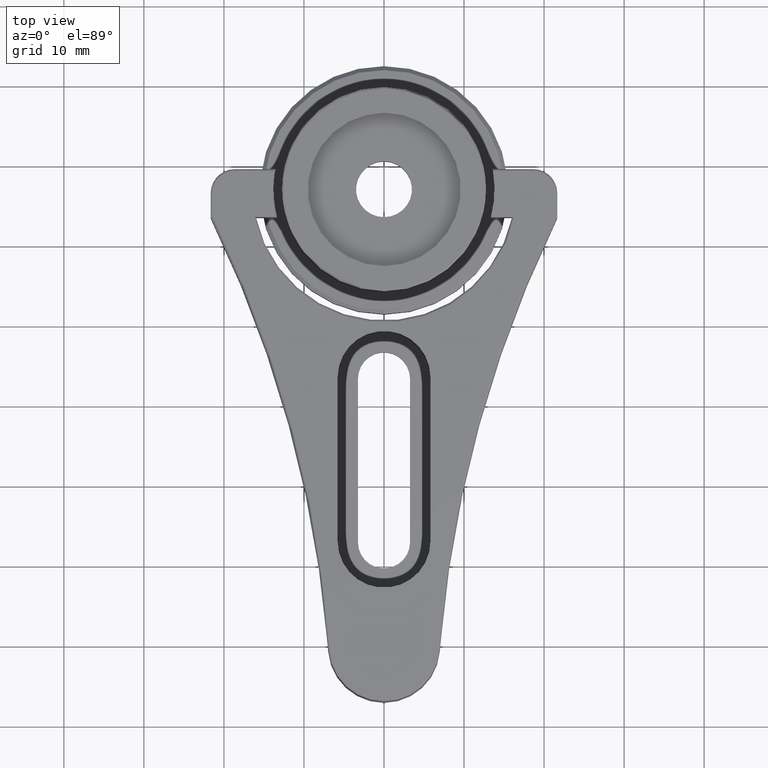
[diagram: clean part render]
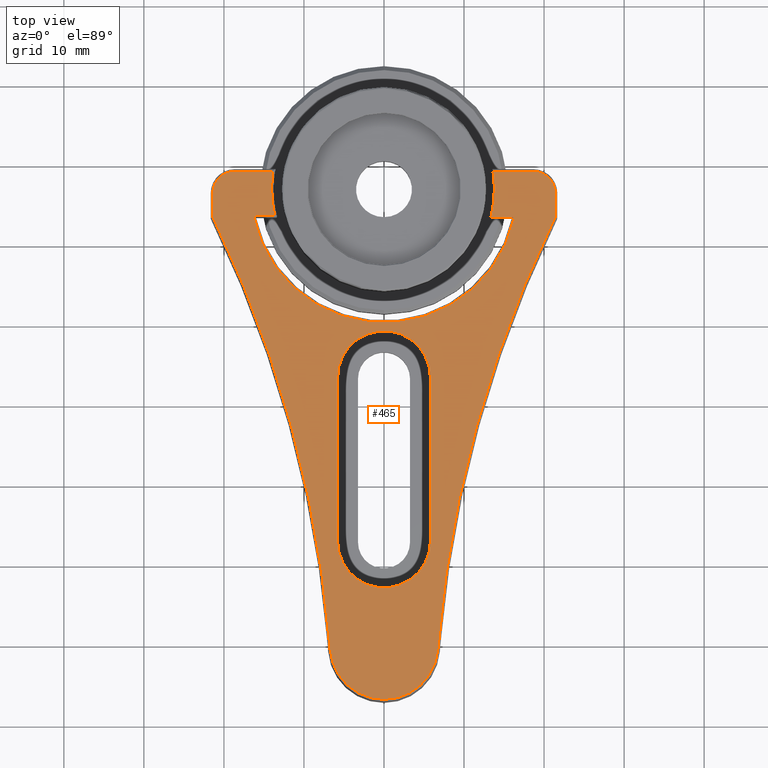
[diagram: same view with one face highlighted and labeled with its STEP entity id]
A machine part, top view. The second image highlights one B-rep face of the part: STEP entity #465.
In plain terms, the highlighted planar face has unit normal (-0, 0, 1).
Its self-contained STEP definition (entity closure, byte-faithful):
#7 = CARTESIAN_POINT ( 'NONE',  ( -9.214018816591089200E-012, -5.370703881625333900E-015, 10.80000000000000100 ) ) ;
#15 = DIRECTION ( 'NONE',  ( 2.834792021718399100E-015, -1.000000000000000000, 0.0000000000000000000 ) ) ;
#16 = ORIENTED_EDGE ( 'NONE', *, *, #103, .T. ) ;
#35 = DIRECTION ( 'NONE',  ( 1.156482317317913300E-015, 1.000000000000000000, -0.0000000000000000000 ) ) ;
#46 = LINE ( 'NONE', #417, #1243 ) ;
#103 = EDGE_CURVE ( 'NONE', #2267, #194, #1015, .T. ) ;
#115 = EDGE_CURVE ( 'NONE', #576, #670, #1363, .T. ) ;
#165 = DIRECTION ( 'NONE',  ( 1.000000000000000000, 0.0000000000000000000, 0.0000000000000000000 ) ) ;
#179 = CARTESIAN_POINT ( 'NONE',  ( 0.0000000000000000000, 13.00000000000078900, 10.80000000000000100 ) ) ;
#194 = VERTEX_POINT ( 'NONE', #1903 ) ;
#210 = EDGE_CURVE ( 'NONE', #2648, #1489, #2066, .T. ) ;
#211 = CARTESIAN_POINT ( 'NONE',  ( 5.800000000000011400, 13.00000000000078900, 10.80000000000000100 ) ) ;
#231 = DIRECTION ( 'NONE',  ( -0.0000000000000000000, 0.0000000000000000000, 1.000000000000000000 ) ) ;
#233 = ORIENTED_EDGE ( 'NONE', *, *, #210, .T. ) ;
#235 = VERTEX_POINT ( 'NONE', #677 ) ;
#250 = CARTESIAN_POINT ( 'NONE',  ( 5.800000000000011400, 33.49999999999933200, 10.80000000000000100 ) ) ;
#263 = VERTEX_POINT ( 'NONE', #433 ) ;
#268 = FACE_BOUND ( 'NONE', #738, .T. ) ;
#273 = EDGE_CURVE ( 'NONE', #194, #916, #1125, .T. ) ;
#302 = CARTESIAN_POINT ( 'NONE',  ( 6.729826611543264100, -0.5214727015295810300, 10.80000000000000100 ) ) ;
#339 = EDGE_CURVE ( 'NONE', #2555, #2648, #2131, .T. ) ;
#378 = CARTESIAN_POINT ( 'NONE',  ( 18.64999999999077900, 56.49999999999924700, 10.80000000000000100 ) ) ;
#381 = ORIENTED_EDGE ( 'NONE', *, *, #582, .F. ) ;
#395 = DIRECTION ( 'NONE',  ( -0.0000000000000000000, 0.0000000000000000000, 1.000000000000000000 ) ) ;
#417 = CARTESIAN_POINT ( 'NONE',  ( -18.65000000000922100, 59.24999999999925400, 10.80000000000000100 ) ) ;
#430 = DIRECTION ( 'NONE',  ( -1.000000000000000000, 2.732741864993315900E-015, -0.0000000000000000000 ) ) ;
#433 = CARTESIAN_POINT ( 'NONE',  ( 13.34878271602879000, 53.49999999999934600, 10.80000000000000100 ) ) ;
#449 = AXIS2_PLACEMENT_3D ( 'NONE', #2124, #618, #2545 ) ;
#452 = DIRECTION ( 'NONE',  ( 0.0000000000000000000, -0.0000000000000000000, -1.000000000000000000 ) ) ;
#465 = ADVANCED_FACE ( 'NONE', ( #268, #1191 ), #2336, .T. ) ;
#486 = ORIENTED_EDGE ( 'NONE', *, *, #655, .T. ) ;
#497 = LINE ( 'NONE', #2060, #717 ) ;
#526 = ORIENTED_EDGE ( 'NONE', *, *, #2709, .T. ) ;
#543 = ORIENTED_EDGE ( 'NONE', *, *, #2478, .T. ) ;
#545 = VECTOR ( 'NONE', #35, 1000.000000000000000 ) ;
#569 = CARTESIAN_POINT ( 'NONE',  ( -9.222417756143833600E-012, 57.00000000000057600, 10.80000000000000100 ) ) ;
#572 = ORIENTED_EDGE ( 'NONE', *, *, #2486, .T. ) ;
#576 = VERTEX_POINT ( 'NONE', #886 ) ;
#582 = EDGE_CURVE ( 'NONE', #235, #1137, #797, .T. ) ;
#584 = CARTESIAN_POINT ( 'NONE',  ( -16.32972749314271600, 53.74999999999997900, 10.80000000000000100 ) ) ;
#618 = DIRECTION ( 'NONE',  ( 0.0000000000000000000, -0.0000000000000000000, -1.000000000000000000 ) ) ;
#655 = EDGE_CURVE ( 'NONE', #2449, #1105, #2341, .T. ) ;
#658 = CARTESIAN_POINT ( 'NONE',  ( -13.86866972713181300, 59.24999999999924000, 10.80000000000000100 ) ) ;
#661 = CARTESIAN_POINT ( 'NONE',  ( 21.39999999999071500, -2.474872159059260800E-014, 10.80000000000000100 ) ) ;
#670 = VERTEX_POINT ( 'NONE', #1223 ) ;
#677 = CARTESIAN_POINT ( 'NONE',  ( -5.800000000000040700, 33.49999999999933200, 10.80000000000000100 ) ) ;
#701 = CIRCLE ( 'NONE', #1995, 5.800000000000040700 ) ;
#717 = VECTOR ( 'NONE', #1198, 1000.000000000000000 ) ;
#737 = CARTESIAN_POINT ( 'NONE',  ( -6.729826611561692900, -0.5214727015295752600, 10.80000000000000100 ) ) ;
#738 = EDGE_LOOP ( 'NONE', ( #1545, #381, #1157, #1711 ) ) ;
#759 = CARTESIAN_POINT ( 'NONE',  ( 16.27797591839045000, 53.49999999999997200, 10.80000000000000100 ) ) ;
#775 = CARTESIAN_POINT ( 'NONE',  ( -21.40000000000922100, 53.49999999999935300, 10.80000000000000100 ) ) ;
#787 = CARTESIAN_POINT ( 'NONE',  ( 1.143985034026907700E-011, 53.74999999999651100, 10.80000000000000100 ) ) ;
#797 = LINE ( 'NONE', #1304, #2219 ) ;
#829 = DIRECTION ( 'NONE',  ( -0.0000000000000000000, 0.0000000000000000000, 1.000000000000000000 ) ) ;
#856 = CIRCLE ( 'NONE', #1356, 5.800000000000011400 ) ;
#886 = CARTESIAN_POINT ( 'NONE',  ( 18.64999999999077900, 59.24999999999925400, 10.80000000000000100 ) ) ;
#898 = VECTOR ( 'NONE', #2292, 1000.000000000000000 ) ;
#916 = VERTEX_POINT ( 'NONE', #2047 ) ;
#924 = VERTEX_POINT ( 'NONE', #759 ) ;
#943 = AXIS2_PLACEMENT_3D ( 'NONE', #2574, #452, #1737 ) ;
#960 = CIRCLE ( 'NONE', #2654, 13.80000000000002000 ) ;
#973 = ORIENTED_EDGE ( 'NONE', *, *, #1966, .T. ) ;
#986 = VECTOR ( 'NONE', #2079, 1000.000000000000000 ) ;
#992 = VERTEX_POINT ( 'NONE', #737 ) ;
#1000 = AXIS2_PLACEMENT_3D ( 'NONE', #7, #231, #2165 ) ;
#1015 = CIRCLE ( 'NONE', #449, 150.2500000000000600 ) ;
#1019 = DIRECTION ( 'NONE',  ( 1.000000000000000000, 0.0000000000000000000, 0.0000000000000000000 ) ) ;
#1021 = DIRECTION ( 'NONE',  ( 1.000000000000000000, 0.0000000000000000000, 0.0000000000000000000 ) ) ;
#1027 = VECTOR ( 'NONE', #2265, 1000.000000000000000 ) ;
#1045 = AXIS2_PLACEMENT_3D ( 'NONE', #2639, #1568, #1789 ) ;
#1075 = EDGE_CURVE ( 'NONE', #1137, #1653, #856, .T. ) ;
#1085 = EDGE_CURVE ( 'NONE', #916, #576, #2719, .T. ) ;
#1087 = EDGE_LOOP ( 'NONE', ( #1802, #1790, #1820, #543, #1276, #2563, #233, #973, #486, #572, #2114, #526, #16, #2443 ) ) ;
#1099 = DIRECTION ( 'NONE',  ( 0.0000000000000000000, 0.0000000000000000000, 1.000000000000000000 ) ) ;
#1105 = VERTEX_POINT ( 'NONE', #1220 ) ;
#1125 = LINE ( 'NONE', #661, #545 ) ;
#1137 = VERTEX_POINT ( 'NONE', #1980 ) ;
#1145 = CARTESIAN_POINT ( 'NONE',  ( 5.800000000000011400, 13.00000000000078900, 10.80000000000000100 ) ) ;
#1157 = ORIENTED_EDGE ( 'NONE', *, *, #2245, .F. ) ;
#1163 = CIRCLE ( 'NONE', #1000, 6.750000000000034600 ) ;
#1191 = FACE_OUTER_BOUND ( 'NONE', #1087, .T. ) ;
#1196 = AXIS2_PLACEMENT_3D ( 'NONE', #2029, #2447, #2457 ) ;
#1197 = AXIS2_PLACEMENT_3D ( 'NONE', #2707, #395, #1021 ) ;
#1198 = DIRECTION ( 'NONE',  ( 1.000000000000000000, 2.128344249352524100E-013, 0.0000000000000000000 ) ) ;
#1214 = EDGE_CURVE ( 'NONE', #670, #263, #960, .T. ) ;
#1220 = CARTESIAN_POINT ( 'NONE',  ( -21.40000000000922500, 56.49999999999924700, 10.80000000000000100 ) ) ;
#1223 = CARTESIAN_POINT ( 'NONE',  ( 13.61534061269697200, 59.24999999999924000, 10.80000000000000100 ) ) ;
#1227 = CIRCLE ( 'NONE', #1196, 16.65000000000011600 ) ;
#1243 = VECTOR ( 'NONE', #430, 1000.000000000000000 ) ;
#1276 = ORIENTED_EDGE ( 'NONE', *, *, #2323, .T. ) ;
#1304 = CARTESIAN_POINT ( 'NONE',  ( -5.800000000000069100, 33.49999999999933200, 10.80000000000000100 ) ) ;
#1356 = AXIS2_PLACEMENT_3D ( 'NONE', #179, #1456, #1895 ) ;
#1363 = LINE ( 'NONE', #2716, #898 ) ;
#1394 = EDGE_CURVE ( 'NONE', #1422, #992, #1463, .T. ) ;
#1422 = VERTEX_POINT ( 'NONE', #1988 ) ;
#1456 = DIRECTION ( 'NONE',  ( 0.0000000000000000000, 0.0000000000000000000, 1.000000000000000000 ) ) ;
#1463 = CIRCLE ( 'NONE', #1045, 150.2500000000000300 ) ;
#1489 = VERTEX_POINT ( 'NONE', #658 ) ;
#1545 = ORIENTED_EDGE ( 'NONE', *, *, #1075, .F. ) ;
#1568 = DIRECTION ( 'NONE',  ( 0.0000000000000000000, -0.0000000000000000000, -1.000000000000000000 ) ) ;
#1653 = VERTEX_POINT ( 'NONE', #211 ) ;
#1711 = ORIENTED_EDGE ( 'NONE', *, *, #2274, .F. ) ;
#1737 = DIRECTION ( 'NONE',  ( 1.000000000000000000, 0.0000000000000000000, 0.0000000000000000000 ) ) ;
#1789 = DIRECTION ( 'NONE',  ( 1.000000000000000000, 4.445048507494646600E-015, 0.0000000000000000000 ) ) ;
#1790 = ORIENTED_EDGE ( 'NONE', *, *, #115, .T. ) ;
#1802 = ORIENTED_EDGE ( 'NONE', *, *, #1085, .T. ) ;
#1820 = ORIENTED_EDGE ( 'NONE', *, *, #1214, .T. ) ;
#1849 = LINE ( 'NONE', #775, #1027 ) ;
#1895 = DIRECTION ( 'NONE',  ( 1.000000000000000000, 0.0000000000000000000, 0.0000000000000000000 ) ) ;
#1903 = CARTESIAN_POINT ( 'NONE',  ( 21.39999999999077600, 53.55756820171821900, 10.80000000000000100 ) ) ;
#1904 = DIRECTION ( 'NONE',  ( -0.0000000000000000000, 0.0000000000000000000, 1.000000000000000000 ) ) ;
#1917 = VERTEX_POINT ( 'NONE', #250 ) ;
#1966 = EDGE_CURVE ( 'NONE', #1489, #2449, #46, .T. ) ;
#1980 = CARTESIAN_POINT ( 'NONE',  ( -5.800000000000010500, 13.00000000000078900, 10.80000000000000100 ) ) ;
#1988 = CARTESIAN_POINT ( 'NONE',  ( -21.40000000000922100, 53.55756820171821900, 10.80000000000000100 ) ) ;
#1995 = AXIS2_PLACEMENT_3D ( 'NONE', #2392, #1099, #2609 ) ;
#2029 = CARTESIAN_POINT ( 'NONE',  ( -9.222417756143833600E-012, 57.00000000000057600, 10.80000000000000100 ) ) ;
#2047 = CARTESIAN_POINT ( 'NONE',  ( 21.39999999999077900, 56.49999999999924700, 10.80000000000000100 ) ) ;
#2060 = CARTESIAN_POINT ( 'NONE',  ( -1.138664173403526100E-011, 53.49999999999651100, 10.80000000000000100 ) ) ;
#2066 = CIRCLE ( 'NONE', #943, 14.05000000000002000 ) ;
#2079 = DIRECTION ( 'NONE',  ( 1.000000000000000000, -2.128344249352524600E-013, 0.0000000000000000000 ) ) ;
#2114 = ORIENTED_EDGE ( 'NONE', *, *, #1394, .T. ) ;
#2124 = CARTESIAN_POINT ( 'NONE',  ( 156.5307819279513800, -12.12906876150258400, 10.80000000000000100 ) ) ;
#2131 = LINE ( 'NONE', #787, #986 ) ;
#2165 = DIRECTION ( 'NONE',  ( 1.000000000000000000, 0.0000000000000000000, 0.0000000000000000000 ) ) ;
#2167 = AXIS2_PLACEMENT_3D ( 'NONE', #378, #1904, #1019 ) ;
#2219 = VECTOR ( 'NONE', #15, 1000.000000000000000 ) ;
#2221 = LINE ( 'NONE', #1145, #2479 ) ;
#2245 = EDGE_CURVE ( 'NONE', #1917, #235, #701, .T. ) ;
#2265 = DIRECTION ( 'NONE',  ( 1.156482317317913300E-015, -1.000000000000000000, 0.0000000000000000000 ) ) ;
#2267 = VERTEX_POINT ( 'NONE', #302 ) ;
#2274 = EDGE_CURVE ( 'NONE', #1653, #1917, #2221, .T. ) ;
#2275 = CARTESIAN_POINT ( 'NONE',  ( -18.65000000000922100, 59.24999999999925400, 10.80000000000000100 ) ) ;
#2292 = DIRECTION ( 'NONE',  ( -1.000000000000000000, -2.732741864993315900E-015, -0.0000000000000000000 ) ) ;
#2320 = CARTESIAN_POINT ( 'NONE',  ( 0.0000000000000000000, 0.0000000000000000000, 10.80000000000000100 ) ) ;
#2323 = EDGE_CURVE ( 'NONE', #924, #2555, #1227, .T. ) ;
#2336 = PLANE ( 'NONE',  #2570 ) ;
#2341 = CIRCLE ( 'NONE', #1197, 2.750000000000005800 ) ;
#2392 = CARTESIAN_POINT ( 'NONE',  ( 4.119968255446100100E-018, 33.49999999999933200, 10.80000000000000100 ) ) ;
#2443 = ORIENTED_EDGE ( 'NONE', *, *, #273, .T. ) ;
#2447 = DIRECTION ( 'NONE',  ( 0.0000000000000000000, -0.0000000000000000000, -1.000000000000000000 ) ) ;
#2449 = VERTEX_POINT ( 'NONE', #2275 ) ;
#2457 = DIRECTION ( 'NONE',  ( 1.000000000000000000, 0.0000000000000000000, 0.0000000000000000000 ) ) ;
#2478 = EDGE_CURVE ( 'NONE', #263, #924, #497, .T. ) ;
#2479 = VECTOR ( 'NONE', #2645, 1000.000000000000000 ) ;
#2486 = EDGE_CURVE ( 'NONE', #1105, #1422, #1849, .T. ) ;
#2545 = DIRECTION ( 'NONE',  ( 1.000000000000000000, 0.0000000000000000000, 0.0000000000000000000 ) ) ;
#2555 = VERTEX_POINT ( 'NONE', #584 ) ;
#2563 = ORIENTED_EDGE ( 'NONE', *, *, #339, .T. ) ;
#2570 = AXIS2_PLACEMENT_3D ( 'NONE', #2320, #829, #2763 ) ;
#2574 = CARTESIAN_POINT ( 'NONE',  ( -9.222417756143833600E-012, 57.00000000000057600, 10.80000000000000100 ) ) ;
#2597 = CARTESIAN_POINT ( 'NONE',  ( -13.66894289988238700, 53.74999999999941700, 10.80000000000000100 ) ) ;
#2609 = DIRECTION ( 'NONE',  ( 1.000000000000000000, 0.0000000000000000000, 0.0000000000000000000 ) ) ;
#2639 = CARTESIAN_POINT ( 'NONE',  ( -156.5307819279698300, -12.12906876150258400, 10.80000000000000100 ) ) ;
#2645 = DIRECTION ( 'NONE',  ( 0.0000000000000000000, 1.000000000000000000, 0.0000000000000000000 ) ) ;
#2648 = VERTEX_POINT ( 'NONE', #2597 ) ;
#2654 = AXIS2_PLACEMENT_3D ( 'NONE', #569, #2724, #165 ) ;
#2707 = CARTESIAN_POINT ( 'NONE',  ( -18.65000000000922100, 56.49999999999924700, 10.80000000000000100 ) ) ;
#2709 = EDGE_CURVE ( 'NONE', #992, #2267, #1163, .T. ) ;
#2716 = CARTESIAN_POINT ( 'NONE',  ( -1.619149555008518100E-013, 59.24999999999920400, 10.80000000000000100 ) ) ;
#2719 = CIRCLE ( 'NONE', #2167, 2.750000000000005800 ) ;
#2724 = DIRECTION ( 'NONE',  ( 0.0000000000000000000, -0.0000000000000000000, -1.000000000000000000 ) ) ;
#2763 = DIRECTION ( 'NONE',  ( 1.000000000000000000, 0.0000000000000000000, 0.0000000000000000000 ) ) ;